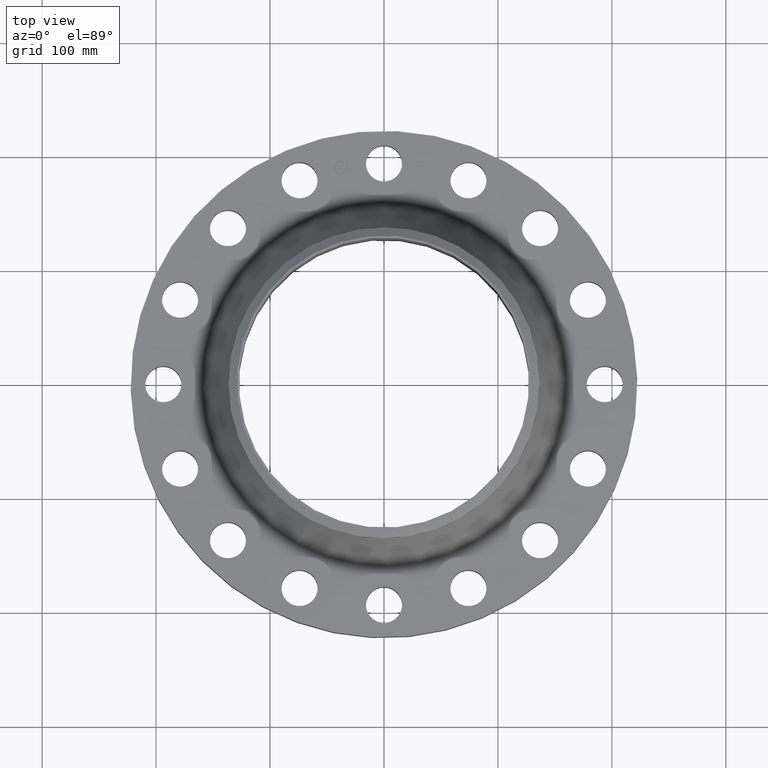
[diagram: clean part render]
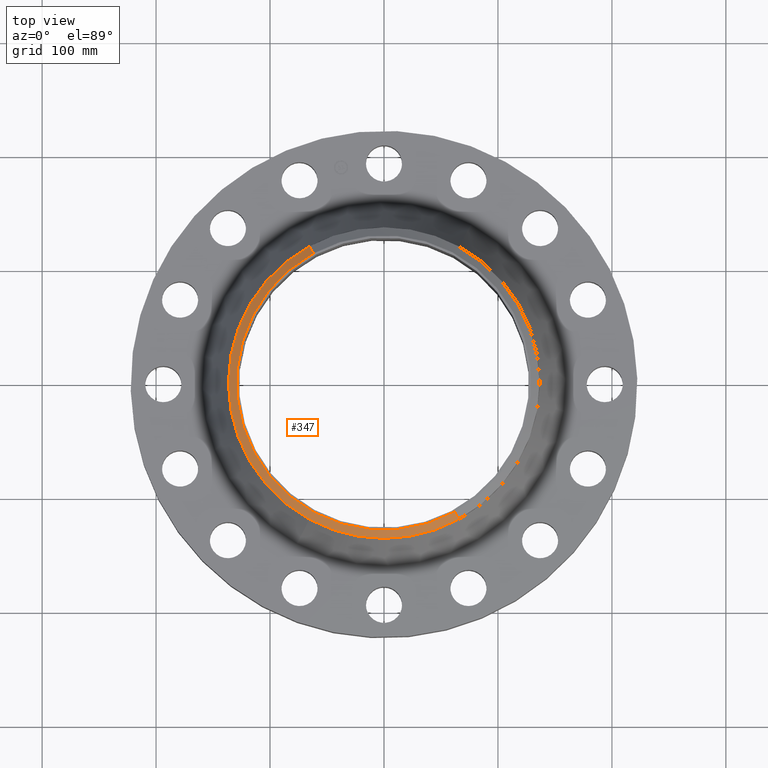
[diagram: same view with one face highlighted and labeled with its STEP entity id]
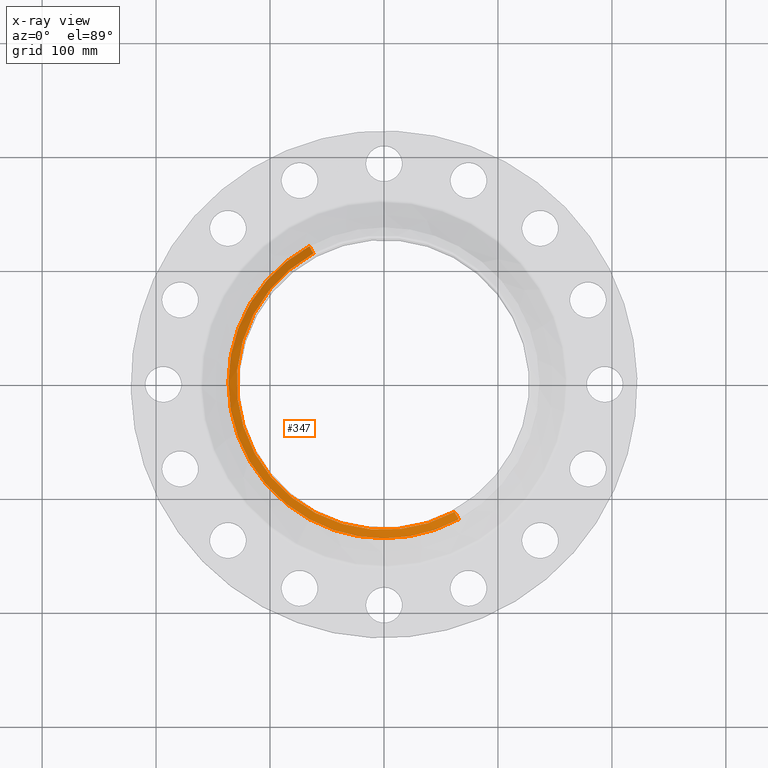
[diagram: x-ray of the same camera — body ghosted, the highlighted face saturated]
A machine part, top view. The second image highlights one B-rep face of the part: STEP entity #347.
The next image is the same camera in x-ray: the body ghosted, the highlighted face saturated — about 0% of this face is hidden behind the body in this view.
In plain terms, the highlighted conical surface has half-angle 52.5 deg.
Its self-contained STEP definition (entity closure, byte-faithful):
#285=AXIS2_PLACEMENT_3D('Circle Axis2P3D',#283,#284,$) ;
#298=AXIS2_PLACEMENT_3D('Circle Axis2P3D',#296,#297,$) ;
#319=AXIS2_PLACEMENT_3D('Cone Axis2P3D',#316,#317,#318) ;
#330=AXIS2_PLACEMENT_3D('Circle Axis2P3D',#328,#329,$) ;
#266=CARTESIAN_POINT('Vertex',(-2.57691227001,-4.71700627018,4.66034509728)) ;
#280=CARTESIAN_POINT('Vertex',(2.57691227001,-4.71700627018,4.66034509728)) ;
#283=CARTESIAN_POINT('Axis2P3D Location',(0.,0.,4.66034509728)) ;
#296=CARTESIAN_POINT('Axis2P3D Location',(0.,0.,4.66034509728)) ;
#300=CARTESIAN_POINT('Vertex',(-2.57691227001,4.71700627018,4.66034509728)) ;
#316=CARTESIAN_POINT('Axis2P3D Location',(0.,0.,4.88000000002)) ;
#321=CARTESIAN_POINT('Line Origine',(2.50829213042,-4.5913979472,4.77017254865)) ;
#325=CARTESIAN_POINT('Vertex',(2.43967199083,-4.46578962421,4.88000000002)) ;
#328=CARTESIAN_POINT('Axis2P3D Location',(0.,0.,4.88000000002)) ;
#332=CARTESIAN_POINT('Vertex',(-2.43967199083,4.46578962421,4.88000000002)) ;
#335=CARTESIAN_POINT('Line Origine',(-2.50829213042,4.5913979472,4.77017254865)) ;
#284=DIRECTION('Axis2P3D Direction',(0.,0.,-0.0393700787402)) ;
#297=DIRECTION('Axis2P3D Direction',(0.,0.,-0.0393700787402)) ;
#317=DIRECTION('Axis2P3D Direction',(-0.,-0.,-0.0393700787402)) ;
#318=DIRECTION('Axis2P3D XDirection',(-0.0188750212049,0.0345504945626,0.)) ;
#322=DIRECTION('Vector Direction',(0.014974561121,-0.02741075027,-0.023966985394)) ;
#329=DIRECTION('Axis2P3D Direction',(0.,0.,-0.0393700787402)) ;
#336=DIRECTION('Vector Direction',(-0.014974561121,0.02741075027,-0.023966985394)) ;
#323=VECTOR('Line Direction',#322,0.0393700787402) ;
#337=VECTOR('Line Direction',#336,0.0393700787402) ;
#341=ORIENTED_EDGE('',*,*,#327,.F.) ;
#342=ORIENTED_EDGE('',*,*,#334,.F.) ;
#343=ORIENTED_EDGE('',*,*,#339,.T.) ;
#344=ORIENTED_EDGE('',*,*,#302,.T.) ;
#345=ORIENTED_EDGE('',*,*,#287,.F.) ;
#347=ADVANCED_FACE('PartBody',(#346),#320,.T.) ;
#286=CIRCLE('generated circle',#285,5.37500000002) ;
#299=CIRCLE('generated circle',#298,5.37500000002) ;
#331=CIRCLE('generated circle',#330,5.0887401575) ;
#320=CONICAL_SURFACE('Cone',#319,5.0887401575,0.916297857297) ;
#287=EDGE_CURVE('',#281,#267,#286,.T.) ;
#302=EDGE_CURVE('',#301,#267,#299,.F.) ;
#327=EDGE_CURVE('',#326,#281,#324,.T.) ;
#334=EDGE_CURVE('',#333,#326,#331,.F.) ;
#339=EDGE_CURVE('',#333,#301,#338,.T.) ;
#340=EDGE_LOOP('',(#341,#342,#343,#344,#345)) ;
#346=FACE_OUTER_BOUND('',#340,.T.) ;
#324=LINE('Line',#321,#323) ;
#338=LINE('Line',#335,#337) ;
#267=VERTEX_POINT('',#266) ;
#281=VERTEX_POINT('',#280) ;
#301=VERTEX_POINT('',#300) ;
#326=VERTEX_POINT('',#325) ;
#333=VERTEX_POINT('',#332) ;